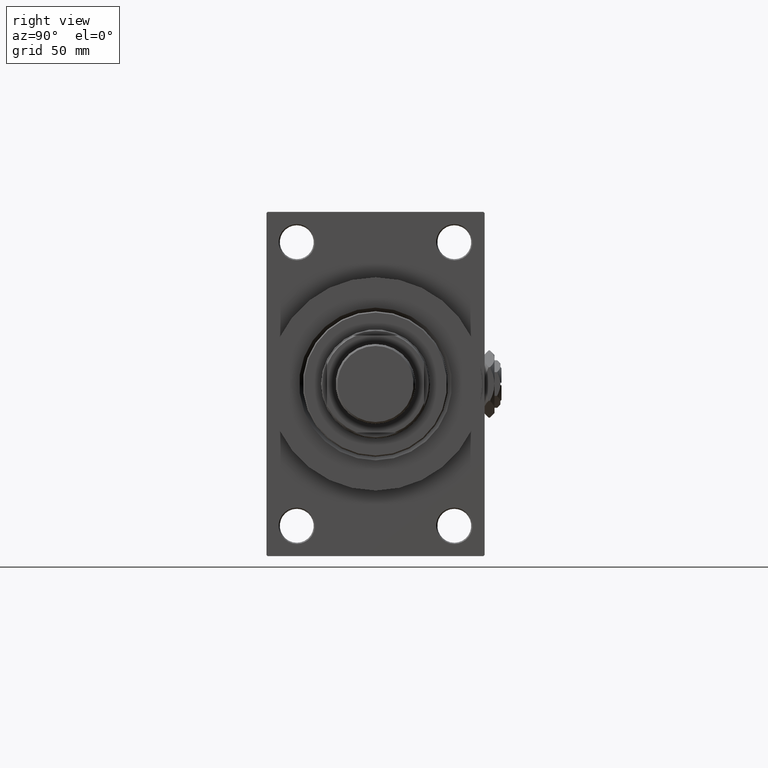
[diagram: clean part render]
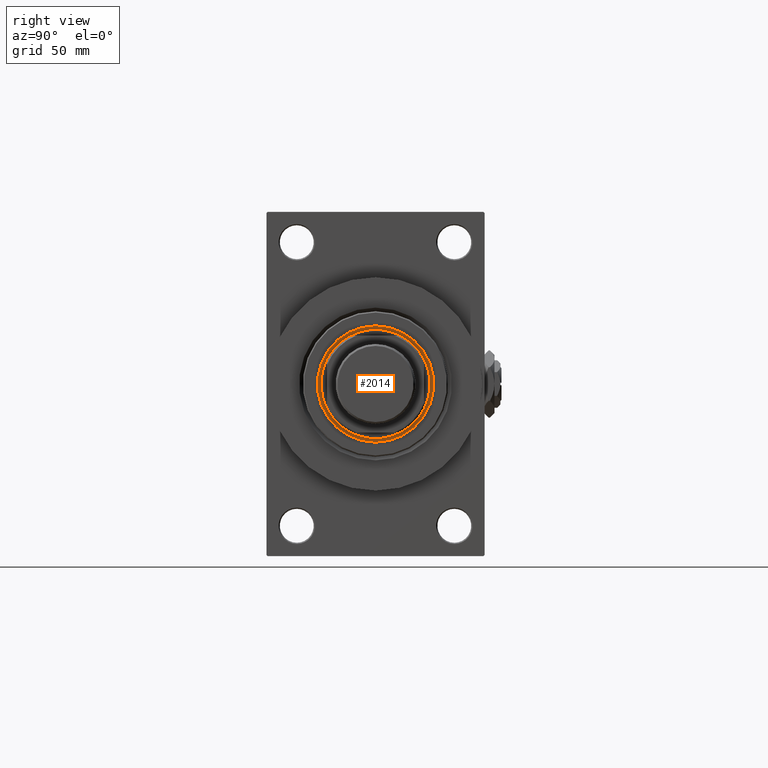
[diagram: same view with one face highlighted and labeled with its STEP entity id]
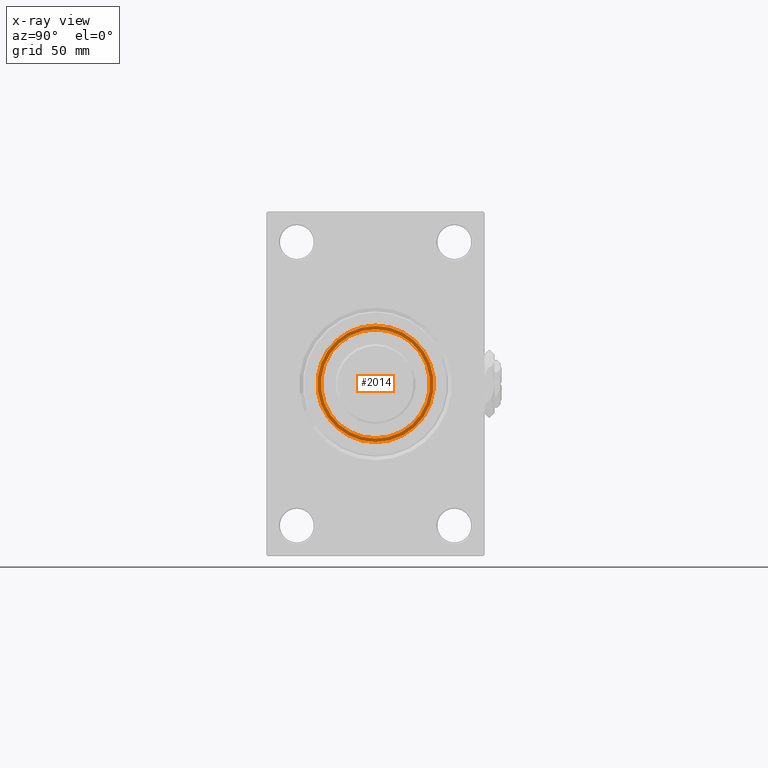
[diagram: x-ray of the same camera — body ghosted, the highlighted face saturated]
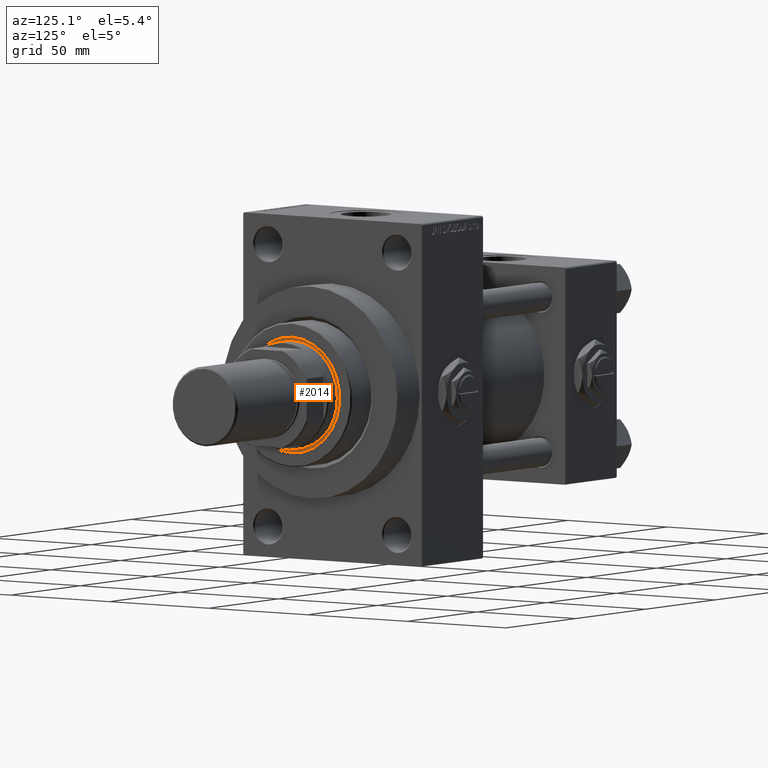
[diagram: same view with one face highlighted and labeled with its STEP entity id]
A machine part, right view. The second image highlights one B-rep face of the part: STEP entity #2014.
The next image is the same camera in x-ray: the body ghosted, the highlighted face saturated — about 0% of this face is hidden behind the body in this view.
A second angle (auxiliary view) of the same face is appended — the face is thin or edge-on in the first view.
In plain terms, the highlighted planar face has unit normal (1, -0, -0).
Its self-contained STEP definition (entity closure, byte-faithful):
#1928 = AXIS2_PLACEMENT_3D ( 'NONE', #6269, #14549, #18321 ) ;
#2014 = ADVANCED_FACE ( 'NONE', ( #44205, #25103 ), #21347, .T. ) ;
#2681 = DIRECTION ( 'NONE',  ( 0.000000000000000000, 0.000000000000000000, 1.000000000000000000 ) ) ;
#2845 = EDGE_LOOP ( 'NONE', ( #8177, #10051 ) ) ;
#6269 = CARTESIAN_POINT ( 'NONE',  ( 0.000000000000000000, 0.000000000000000000, 55.75999999999999801 ) ) ;
#6891 = CARTESIAN_POINT ( 'NONE',  ( 0.000000000000000000, 0.000000000000000000, 55.76000000000000512 ) ) ;
#8177 = ORIENTED_EDGE ( 'NONE', *, *, #43329, .T. ) ;
#10051 = ORIENTED_EDGE ( 'NONE', *, *, #12282, .T. ) ;
#12282 = EDGE_CURVE ( 'NONE', #31242, #40180, #47965, .T. ) ;
#12648 = AXIS2_PLACEMENT_3D ( 'NONE', #37124, #2681, #29582 ) ;
#13012 = VERTEX_POINT ( 'NONE', #49264 ) ;
#14120 = EDGE_CURVE ( 'NONE', #13012, #34245, #31925, .T. ) ;
#14549 = DIRECTION ( 'NONE',  ( 0.000000000000000000, 0.000000000000000000, 1.000000000000000000 ) ) ;
#14646 = CIRCLE ( 'NONE', #41935, 24.00000000000000355 ) ;
#15273 = CARTESIAN_POINT ( 'NONE',  ( 0.000000000000000000, 0.000000000000000000, 55.76000000000000512 ) ) ;
#16747 = ORIENTED_EDGE ( 'NONE', *, *, #20583, .T. ) ;
#17212 = AXIS2_PLACEMENT_3D ( 'NONE', #6891, #37801, #33518 ) ;
#17591 = ORIENTED_EDGE ( 'NONE', *, *, #14120, .T. ) ;
#18321 = DIRECTION ( 'NONE',  ( 1.000000000000000000, 0.000000000000000000, -0.000000000000000000 ) ) ;
#18327 = CARTESIAN_POINT ( 'NONE',  ( -24.00000000000000355, 2.939152317953648289E-15, 55.75999999999999801 ) ) ;
#20583 = EDGE_CURVE ( 'NONE', #34245, #13012, #22863, .T. ) ;
#21347 = PLANE ( 'NONE',  #1928 ) ;
#22609 = CARTESIAN_POINT ( 'NONE',  ( 0.000000000000000000, 0.000000000000000000, 55.75999999999999801 ) ) ;
#22863 = CIRCLE ( 'NONE', #17212, 22.50000000000000355 ) ;
#23313 = DIRECTION ( 'NONE',  ( -0.000000000000000000, -0.000000000000000000, -1.000000000000000000 ) ) ;
#25103 = FACE_BOUND ( 'NONE', #43726, .T. ) ;
#25898 = CARTESIAN_POINT ( 'NONE',  ( 24.00000000000000355, 0.000000000000000000, 55.75999999999999801 ) ) ;
#27315 = DIRECTION ( 'NONE',  ( 1.000000000000000000, 0.000000000000000000, 0.000000000000000000 ) ) ;
#29582 = DIRECTION ( 'NONE',  ( 1.000000000000000000, 0.000000000000000000, 0.000000000000000000 ) ) ;
#31242 = VERTEX_POINT ( 'NONE', #18327 ) ;
#31925 = CIRCLE ( 'NONE', #38360, 22.50000000000000355 ) ;
#33518 = DIRECTION ( 'NONE',  ( 1.000000000000000000, 0.000000000000000000, 0.000000000000000000 ) ) ;
#34245 = VERTEX_POINT ( 'NONE', #45577 ) ;
#37124 = CARTESIAN_POINT ( 'NONE',  ( 0.000000000000000000, 0.000000000000000000, 55.75999999999999801 ) ) ;
#37801 = DIRECTION ( 'NONE',  ( -0.000000000000000000, -0.000000000000000000, -1.000000000000000000 ) ) ;
#38360 = AXIS2_PLACEMENT_3D ( 'NONE', #15273, #23313, #27315 ) ;
#40180 = VERTEX_POINT ( 'NONE', #25898 ) ;
#41195 = DIRECTION ( 'NONE',  ( 1.000000000000000000, 0.000000000000000000, 0.000000000000000000 ) ) ;
#41935 = AXIS2_PLACEMENT_3D ( 'NONE', #22609, #48999, #41195 ) ;
#43329 = EDGE_CURVE ( 'NONE', #40180, #31242, #14646, .T. ) ;
#43726 = EDGE_LOOP ( 'NONE', ( #16747, #17591 ) ) ;
#44205 = FACE_OUTER_BOUND ( 'NONE', #2845, .T. ) ;
#45577 = CARTESIAN_POINT ( 'NONE',  ( 22.50000000000000355, 0.000000000000000000, 55.76000000000000512 ) ) ;
#47965 = CIRCLE ( 'NONE', #12648, 24.00000000000000355 ) ;
#48999 = DIRECTION ( 'NONE',  ( 0.000000000000000000, 0.000000000000000000, 1.000000000000000000 ) ) ;
#49264 = CARTESIAN_POINT ( 'NONE',  ( -22.50000000000000355, 2.755455298081545172E-15, 55.76000000000000512 ) ) ;